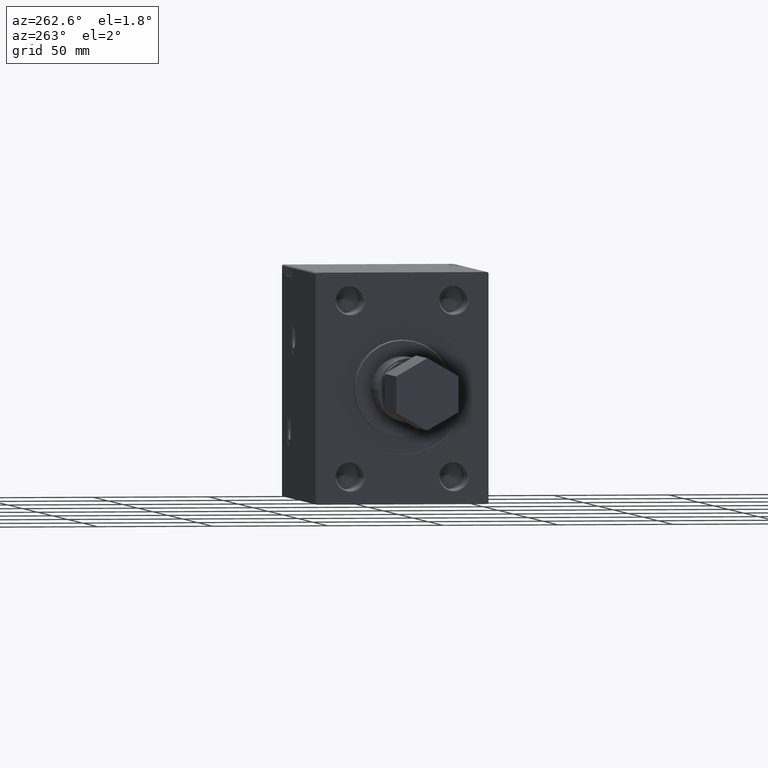
[diagram: clean part render]
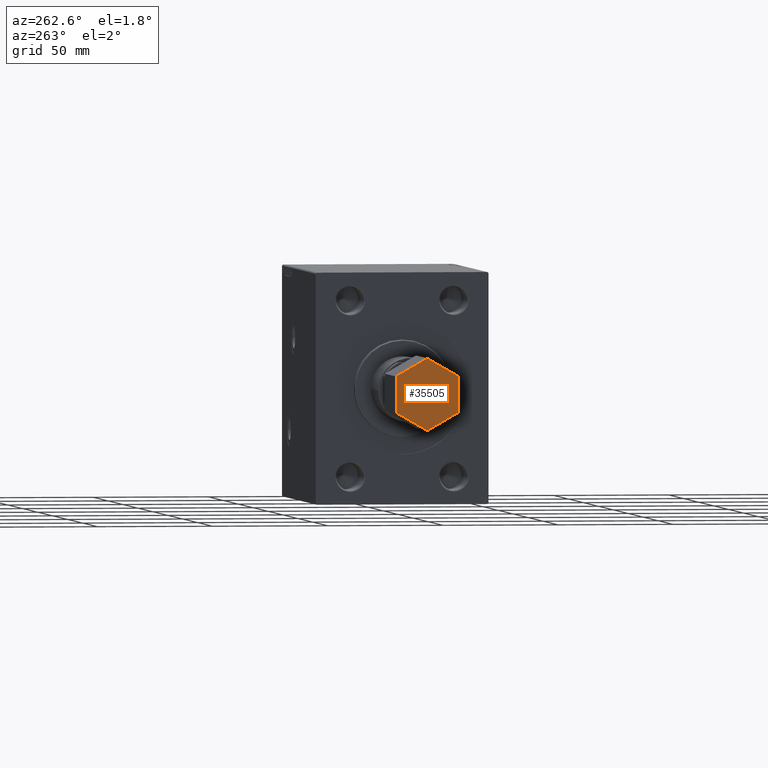
[diagram: same view with one face highlighted and labeled with its STEP entity id]
A machine part, auxiliary view. The second image highlights one B-rep face of the part: STEP entity #35505.
In plain terms, the highlighted planar face has unit normal (-1, 0, 0).
Its self-contained STEP definition (entity closure, byte-faithful):
#1084 = EDGE_CURVE ( 'NONE', #29771, #11179, #42023, .T. ) ;
#3846 = CARTESIAN_POINT ( 'NONE',  ( 84.00000000000000000, -7.794228634059953364, -13.50000000000000178 ) ) ;
#4133 = EDGE_CURVE ( 'NONE', #46595, #7763, #9329, .T. ) ;
#4200 = CARTESIAN_POINT ( 'NONE',  ( 84.00000000000000000, -15.58845726811989607, -5.983477626642369342E-15 ) ) ;
#5126 = VECTOR ( 'NONE', #12437, 1000.000000000000000 ) ;
#7292 = LINE ( 'NONE', #47201, #37218 ) ;
#7298 = ORIENTED_EDGE ( 'NONE', *, *, #40459, .T. ) ;
#7528 = VECTOR ( 'NONE', #45627, 1000.000000000000000 ) ;
#7763 = VERTEX_POINT ( 'NONE', #41687 ) ;
#9329 = LINE ( 'NONE', #16049, #7528 ) ;
#10985 = VECTOR ( 'NONE', #35311, 1000.000000000000000 ) ;
#11179 = VERTEX_POINT ( 'NONE', #3846 ) ;
#12437 = DIRECTION ( 'NONE',  ( 0.000000000000000000, -0.4999999999999996669, 0.8660254037844388186 ) ) ;
#16049 = CARTESIAN_POINT ( 'NONE',  ( 84.00000000000000000, 7.794228634059951588, 13.50000000000000000 ) ) ;
#16052 = EDGE_LOOP ( 'NONE', ( #43558, #45475, #7298, #18375, #42894, #30449 ) ) ;
#16275 = DIRECTION ( 'NONE',  ( 0.000000000000000000, 0.4999999999999998335, -0.8660254037844387076 ) ) ;
#17140 = LINE ( 'NONE', #23394, #35695 ) ;
#17505 = CARTESIAN_POINT ( 'NONE',  ( 84.00000000000000000, -7.794228634059953364, -13.50000000000000178 ) ) ;
#18375 = ORIENTED_EDGE ( 'NONE', *, *, #4133, .T. ) ;
#20641 = LINE ( 'NONE', #17505, #10985 ) ;
#21253 = CARTESIAN_POINT ( 'NONE',  ( 84.00000000000000000, 0.000000000000000000, 0.000000000000000000 ) ) ;
#23394 = CARTESIAN_POINT ( 'NONE',  ( 84.00000000000000000, 7.794228634059952476, -13.49999999999999822 ) ) ;
#24330 = EDGE_CURVE ( 'NONE', #7763, #29771, #7292, .T. ) ;
#25172 = VECTOR ( 'NONE', #16275, 1000.000000000000114 ) ;
#25395 = EDGE_CURVE ( 'NONE', #35998, #38752, #17140, .T. ) ;
#27307 = LINE ( 'NONE', #41765, #5126 ) ;
#28225 = FACE_OUTER_BOUND ( 'NONE', #16052, .T. ) ;
#28725 = AXIS2_PLACEMENT_3D ( 'NONE', #21253, #35687, #42923 ) ;
#28937 = CARTESIAN_POINT ( 'NONE',  ( 84.00000000000000000, 15.58845726811989252, 0.000000000000000000 ) ) ;
#29771 = VERTEX_POINT ( 'NONE', #4200 ) ;
#30449 = ORIENTED_EDGE ( 'NONE', *, *, #1084, .T. ) ;
#31886 = CARTESIAN_POINT ( 'NONE',  ( 84.00000000000000000, -15.58845726811989607, -5.983477626642369342E-15 ) ) ;
#31901 = EDGE_CURVE ( 'NONE', #11179, #35998, #20641, .T. ) ;
#32750 = DIRECTION ( 'NONE',  ( 0.000000000000000000, -0.4999999999999997780, -0.8660254037844387076 ) ) ;
#34708 = DIRECTION ( 'NONE',  ( 0.000000000000000000, 0.4999999999999996669, 0.8660254037844388186 ) ) ;
#35311 = DIRECTION ( 'NONE',  ( 0.000000000000000000, 1.000000000000000000, 2.225651257388383239E-16 ) ) ;
#35505 = ADVANCED_FACE ( 'NONE', ( #28225 ), #43400, .T. ) ;
#35687 = DIRECTION ( 'NONE',  ( 1.000000000000000000, 0.000000000000000000, 0.000000000000000000 ) ) ;
#35695 = VECTOR ( 'NONE', #34708, 1000.000000000000114 ) ;
#35998 = VERTEX_POINT ( 'NONE', #44284 ) ;
#37218 = VECTOR ( 'NONE', #32750, 1000.000000000000227 ) ;
#38752 = VERTEX_POINT ( 'NONE', #28937 ) ;
#39302 = CARTESIAN_POINT ( 'NONE',  ( 84.00000000000000000, 7.794228634059951588, 13.50000000000000000 ) ) ;
#40459 = EDGE_CURVE ( 'NONE', #38752, #46595, #27307, .T. ) ;
#41687 = CARTESIAN_POINT ( 'NONE',  ( 84.00000000000000000, -7.794228634059949812, 13.49999999999999822 ) ) ;
#41765 = CARTESIAN_POINT ( 'NONE',  ( 84.00000000000000000, 15.58845726811989252, 0.000000000000000000 ) ) ;
#42023 = LINE ( 'NONE', #31886, #25172 ) ;
#42894 = ORIENTED_EDGE ( 'NONE', *, *, #24330, .T. ) ;
#42923 = DIRECTION ( 'NONE',  ( 0.000000000000000000, 0.000000000000000000, -1.000000000000000000 ) ) ;
#43400 = PLANE ( 'NONE',  #28725 ) ;
#43558 = ORIENTED_EDGE ( 'NONE', *, *, #31901, .T. ) ;
#44284 = CARTESIAN_POINT ( 'NONE',  ( 84.00000000000000000, 7.794228634059952476, -13.49999999999999822 ) ) ;
#45475 = ORIENTED_EDGE ( 'NONE', *, *, #25395, .T. ) ;
#45627 = DIRECTION ( 'NONE',  ( 0.000000000000000000, -1.000000000000000000, -1.112825628694191866E-16 ) ) ;
#46595 = VERTEX_POINT ( 'NONE', #39302 ) ;
#47201 = CARTESIAN_POINT ( 'NONE',  ( 84.00000000000000000, -7.794228634059949812, 13.49999999999999822 ) ) ;